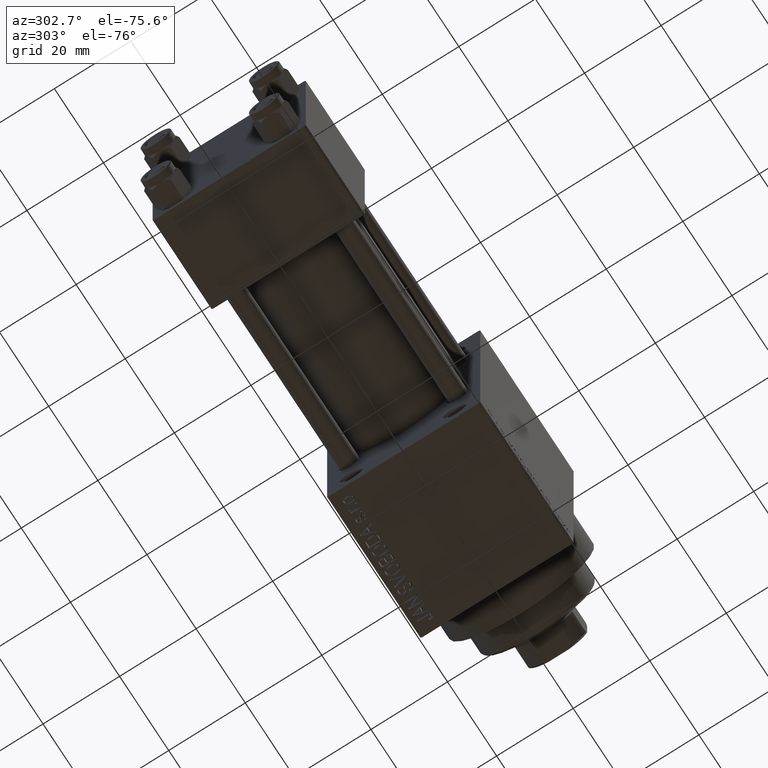
[diagram: clean part render]
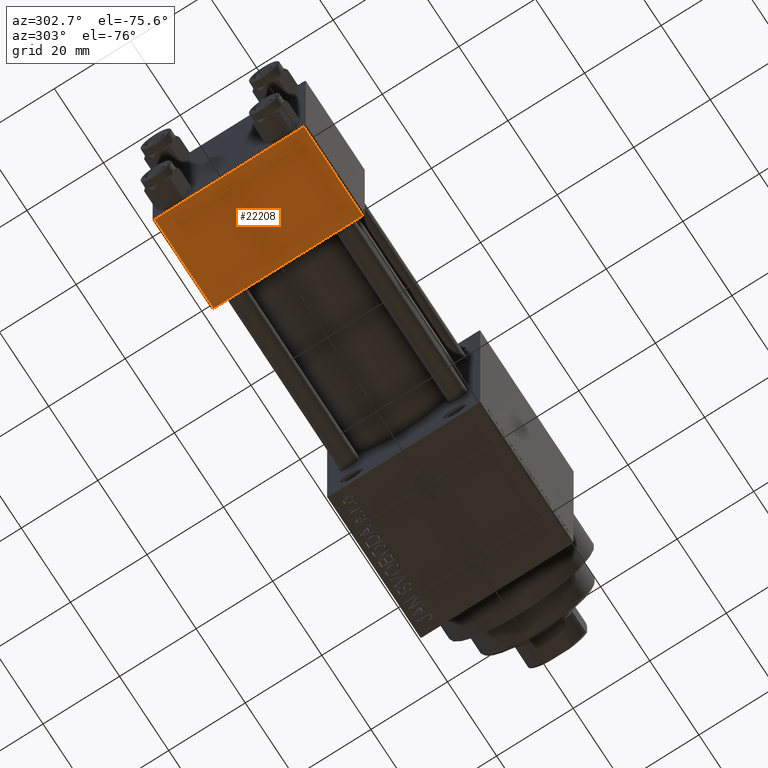
[diagram: same view with one face highlighted and labeled with its STEP entity id]
A machine part, auxiliary view. The second image highlights one B-rep face of the part: STEP entity #22208.
In plain terms, the highlighted planar face has unit normal (0, -0, -1).
Its self-contained STEP definition (entity closure, byte-faithful):
#9 = VECTOR ( 'NONE', #3682, 1000.000000000000000 ) ;
#248 = CARTESIAN_POINT ( 'NONE',  ( 0.000000000000000000, -19.50000000000000711, -20.00000000000000000 ) ) ;
#1691 = VECTOR ( 'NONE', #2646, 1000.000000000000000 ) ;
#2286 = CARTESIAN_POINT ( 'NONE',  ( 24.00000000000000000, 20.00000000000000000, -20.00000000000000711 ) ) ;
#2646 = DIRECTION ( 'NONE',  ( 1.000000000000000000, 0.000000000000000000, 0.000000000000000000 ) ) ;
#3682 = DIRECTION ( 'NONE',  ( 0.000000000000000000, -1.000000000000000000, 1.734723475976807094E-16 ) ) ;
#3831 = ORIENTED_EDGE ( 'NONE', *, *, #9221, .T. ) ;
#3883 = CARTESIAN_POINT ( 'NONE',  ( 24.00000000000000000, 19.50000000000000711, -20.00000000000000711 ) ) ;
#5214 = EDGE_CURVE ( 'NONE', #24150, #44987, #46536, .T. ) ;
#5448 = ORIENTED_EDGE ( 'NONE', *, *, #25371, .T. ) ;
#7724 = ORIENTED_EDGE ( 'NONE', *, *, #5214, .F. ) ;
#9221 = EDGE_CURVE ( 'NONE', #24150, #17244, #13357, .T. ) ;
#9670 = CARTESIAN_POINT ( 'NONE',  ( 0.000000000000000000, -19.50000000000000711, -20.00000000000000000 ) ) ;
#13241 = DIRECTION ( 'NONE',  ( 0.000000000000000000, -1.734723475976806848E-16, -1.000000000000000000 ) ) ;
#13357 = LINE ( 'NONE', #39041, #1691 ) ;
#13762 = CARTESIAN_POINT ( 'NONE',  ( 24.00000000000000000, -19.50000000000000711, -20.00000000000000000 ) ) ;
#17244 = VERTEX_POINT ( 'NONE', #3883 ) ;
#20597 = EDGE_CURVE ( 'NONE', #39733, #44987, #23701, .T. ) ;
#21415 = VECTOR ( 'NONE', #25832, 1000.000000000000000 ) ;
#21797 = CARTESIAN_POINT ( 'NONE',  ( 0.000000000000000000, 20.00000000000000000, -20.00000000000000711 ) ) ;
#22208 = ADVANCED_FACE ( 'NONE', ( #27749 ), #32010, .T. ) ;
#23701 = LINE ( 'NONE', #9670, #42553 ) ;
#24150 = VERTEX_POINT ( 'NONE', #34698 ) ;
#25371 = EDGE_CURVE ( 'NONE', #17244, #39733, #46969, .T. ) ;
#25832 = DIRECTION ( 'NONE',  ( 0.000000000000000000, -1.000000000000000000, 1.734723475976807094E-16 ) ) ;
#27749 = FACE_OUTER_BOUND ( 'NONE', #32989, .T. ) ;
#32010 = PLANE ( 'NONE',  #36500 ) ;
#32989 = EDGE_LOOP ( 'NONE', ( #7724, #3831, #5448, #33291 ) ) ;
#33291 = ORIENTED_EDGE ( 'NONE', *, *, #20597, .T. ) ;
#34698 = CARTESIAN_POINT ( 'NONE',  ( 0.000000000000000000, 19.50000000000000711, -20.00000000000000711 ) ) ;
#36500 = AXIS2_PLACEMENT_3D ( 'NONE', #2286, #13241, #39631 ) ;
#37978 = DIRECTION ( 'NONE',  ( -1.000000000000000000, 0.000000000000000000, 0.000000000000000000 ) ) ;
#39041 = CARTESIAN_POINT ( 'NONE',  ( 24.00000000000000000, 19.50000000000000711, -20.00000000000000711 ) ) ;
#39631 = DIRECTION ( 'NONE',  ( 0.000000000000000000, 1.000000000000000000, -1.734723475976806848E-16 ) ) ;
#39733 = VERTEX_POINT ( 'NONE', #13762 ) ;
#42553 = VECTOR ( 'NONE', #37978, 1000.000000000000000 ) ;
#43888 = CARTESIAN_POINT ( 'NONE',  ( 24.00000000000000000, 20.00000000000000000, -20.00000000000000711 ) ) ;
#44987 = VERTEX_POINT ( 'NONE', #248 ) ;
#46536 = LINE ( 'NONE', #21797, #21415 ) ;
#46969 = LINE ( 'NONE', #43888, #9 ) ;